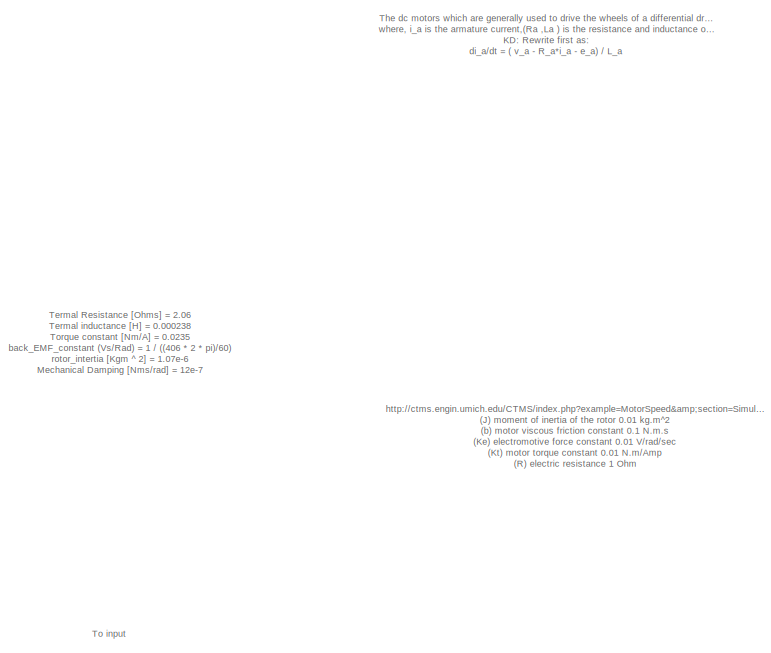
[diagram: root canvas - part 1/2, top center region]
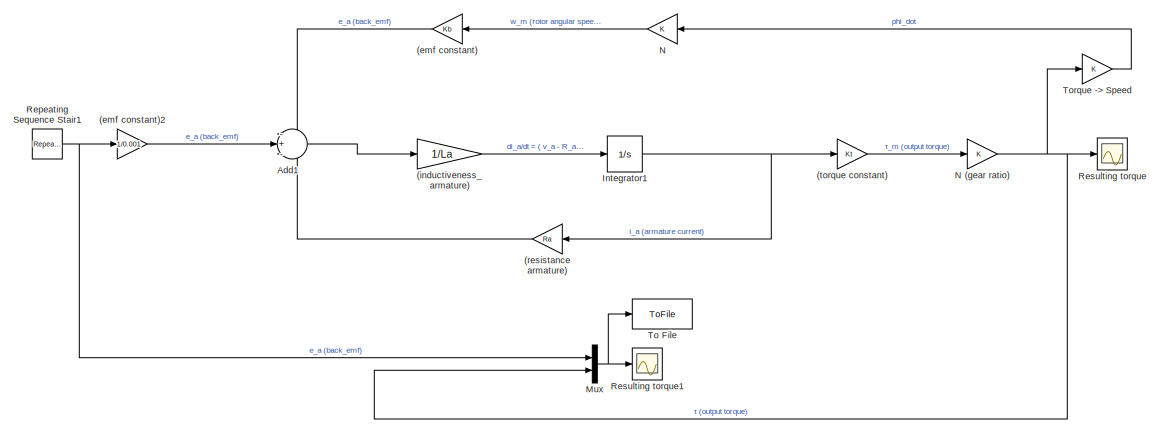
[diagram: root canvas - part 2/2, full width, bottom band]
MODEL slx_6b0b7e51d8a9
KIND model
CONFIG AbsTol = auto
CONFIG EnableMultiTasking = off
CONFIG FixedStep = 0.001
CONFIG MaxStep = auto
CONFIG MinStep = auto
CONFIG RelTol = 1e-3
CONFIG SampleTimeConstraint = Unconstrained
CONFIG Solver = ode3
CONFIG SolverName = ode3
CONFIG StartTime = 0.0
CONFIG StopTime = 1000
WORKSPACE source: MAT-file member
WORKSPACE Kb = 0.01
BLOCK [Gain]  (inductiveness_armature)
  Gain = 1/La
  OutDataTypeStr = Inherit: Inherit via internal rule
  ParamDataTypeStr = Inherit: Inherit via internal rule
  SaturateOnIntegerOverflow = off
BLOCK [Gain] (emf constant)
  Gain = Kb
  OutDataTypeStr = Inherit: Inherit via internal rule
  ParamDataTypeStr = Inherit: Inherit via internal rule
  SaturateOnIntegerOverflow = off
BLOCK [Gain] (emf constant)2
  Gain = 1/0.001
  OutDataTypeStr = Inherit: Inherit via internal rule
  ParamDataTypeStr = Inherit: Inherit via internal rule
  SaturateOnIntegerOverflow = off
BLOCK [Gain] (resistance armature)
  Gain = Ra
  OutDataTypeStr = Inherit: Inherit via internal rule
  ParamDataTypeStr = Inherit: Inherit via internal rule
  SaturateOnIntegerOverflow = off
BLOCK [Gain] (torque constant)
  Gain = Kt
  OutDataTypeStr = Inherit: Inherit via internal rule
  ParamDataTypeStr = Inherit: Inherit via internal rule
  SaturateOnIntegerOverflow = off
BLOCK [Sum] Add1
  IconShape = round
  InputSameDT = off
  Inputs = -+-
  OutDataTypeStr = Inherit: Inherit via internal rule
  Ports = [3, 1]
  SaturateOnIntegerOverflow = off
BLOCK [Integrator] Integrator1
  Ports = [1, 1]
BLOCK [Mux] Mux
  DisplayOption = bar
  Inputs = 2
  Ports = [2, 1]
BLOCK [Gain] N
  OutDataTypeStr = Inherit: Inherit via internal rule
  ParamDataTypeStr = Inherit: Inherit via internal rule
  SaturateOnIntegerOverflow = off
BLOCK [Gain] N (gear ratio)
  OutDataTypeStr = Inherit: Inherit via internal rule
  ParamDataTypeStr = Inherit: Inherit via internal rule
  SaturateOnIntegerOverflow = off
BLOCK [Reference] Repeating Sequence Stair1  REF=simulink/Sources/Repeating
Sequence
Stair
  Ports = [0, 1]
  SourceBlock = simulink/Sources/Repeating\nSequence\nStair
  SourceProductBaseCode = SL
  SourceProductName = Simulink
  SourceType = Repeating Sequence Stair
BLOCK [Scope] Resulting torque
  Floating = off
  NumInputPorts = 1
  Ports = [1]
  ScopeSpecificationString = Simulink.scopes.TimeScopeBlockCfg('CurrentConfiguration', extmgr.ConfigurationSet(extmgr.Configuration('Core','General UI',true),extmgr.Configuration('Core','Source UI',true),extmgr.Configuration('Sources','WiredSimulink',true),extmgr.Configuration('Visuals','Time Domain',true,'SerializedDisplays',{struct('MinYLimReal','-1.87498','MaxYLimReal','16.87483','YLabelReal','','MinYLimMag','0.00000','Max...<+1372ch>
BLOCK [Scope] Resulting torque1
  Floating = off
  NumInputPorts = 1
  Ports = [1]
  ScopeSpecificationString = Simulink.scopes.TimeScopeBlockCfg('CurrentConfiguration', extmgr.ConfigurationSet(extmgr.Configuration('Core','General UI',true),extmgr.Configuration('Core','Source UI',true),extmgr.Configuration('Sources','WiredSimulink',true,'DataLoggingVariableName','ScopeData1'),extmgr.Configuration('Visuals','Time Domain',true,'SerializedDisplays',{struct('MinYLimReal','-1.875','MaxYLimReal','16.875','YLabelR...<+1486ch>
BLOCK [ToFile] To File
  Filename = res.mat
  Ports = [1]
  SampleTime = 0.3
BLOCK [Gain] Torque -> Speed 
  OutDataTypeStr = Inherit: Inherit via internal rule
  ParamDataTypeStr = Inherit: Inherit via internal rule
  SaturateOnIntegerOverflow = off
ANNOTATION (root): Termal Resistance [Ohms] = 2.06 Termal inductance [H] = 0.000238 Torque constant [Nm/A] = 0.0235 back_EMF_constant (Vs/Rad) = 1 / ((406 * 2 * pi)/60) rotor_intertia [Kgm ^ 2] = 1.07e-6 Mechanical Damping [Nms/rad] = 12e-7 Thermal Resistance [K/W] = 14 Thermal time constant [s] = 910 Ambient temperature [C] = 22
ANNOTATION (root): The dc motors which are generally used to drive the wheels of a differential drive mobile robot system are considered to be the servo actuators. In an armature-controlled dc motor which is the case for our DDMR system, the armature voltage v_a is used as the control input while keeping the conditions in the field circuit constant. In particular, for a permanent-magnet dc motor, we have the followi...<+433ch>
ANNOTATION (root): http://ctms.engin.umich.edu/CTMS/index.php?example=MotorSpeed&section=SimulinkModeling (J) moment of inertia of the rotor 0.01 kg.m^2 (b) motor viscous friction constant 0.1 N.m.s (Ke) electromotive force constant 0.01 V/rad/sec (Kt) motor torque constant 0.01 N.m/Amp (R) electric resistance 1 Ohm (L) electric inductance 0.5 H
ANNOTATION (root): To input
LINE  (inductiveness_armature):1 -> Integrator1:1
LINE (emf constant)2:1 -> Add1:2
LINE (emf constant):1 -> Add1:1
LINE (resistance armature):1 -> Add1:3
LINE (torque constant):1 -> N (gear ratio):1
LINE Add1:1 ->  (inductiveness_armature):1
NET Integrator1:1 -> (resistance armature):1, (torque constant):1
NET Mux:1 -> Resulting torque1:1, To File:1
NET N (gear ratio):1 -> Mux:2, Resulting torque:1, Torque -> Speed :1
LINE N:1 -> (emf constant):1
NET Repeating Sequence Stair1:1 -> (emf constant)2:1, Mux:1
LINE Torque -> Speed :1 -> N:1
note: NET lines group one-source signal fan-out (src -> all destinations, sorted); 1:1 wires keep LINE
